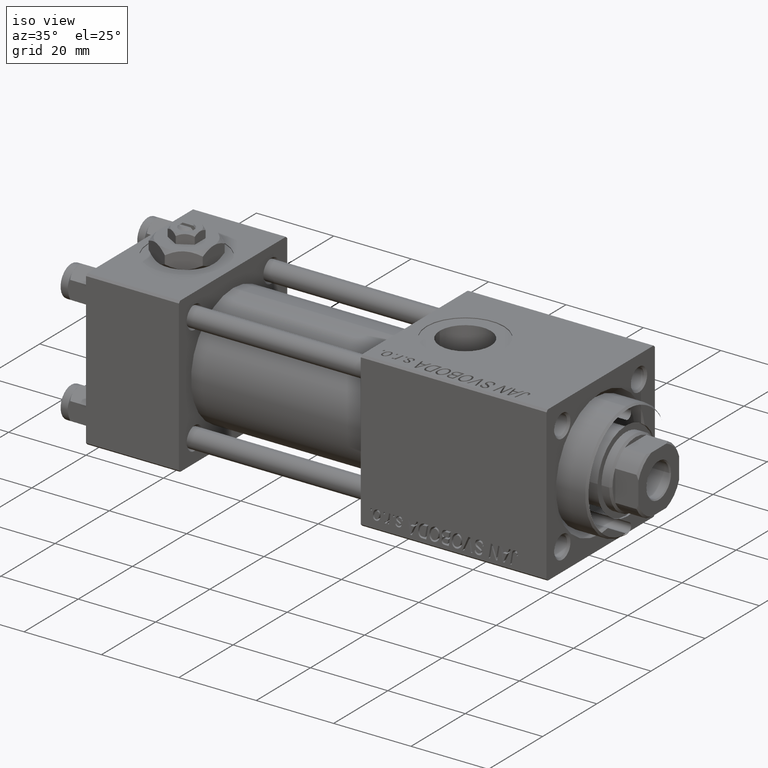
[diagram: clean part render]
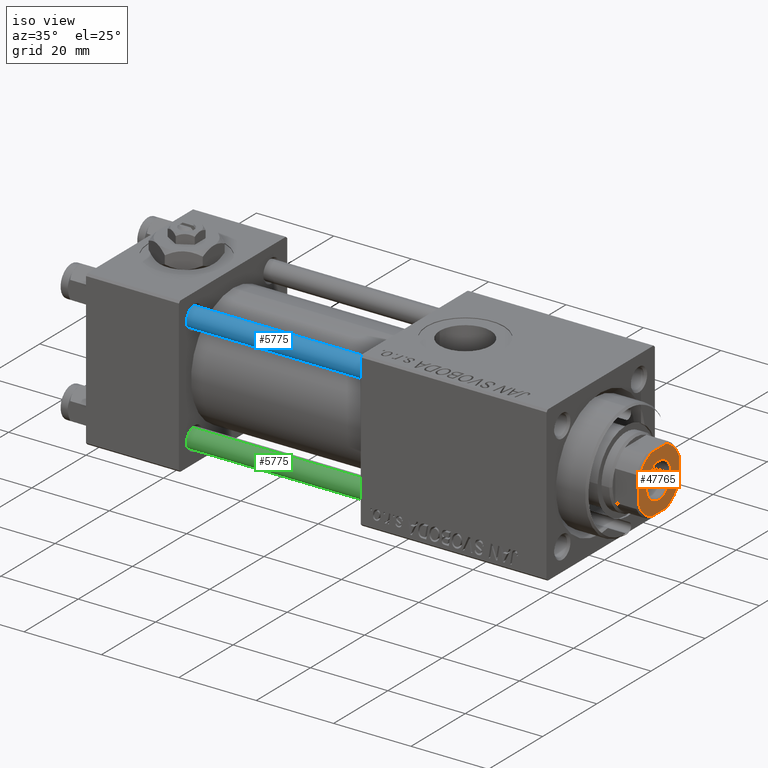
[diagram: same view with three faces highlighted in distinct colors, each labeled with its STEP entity id]
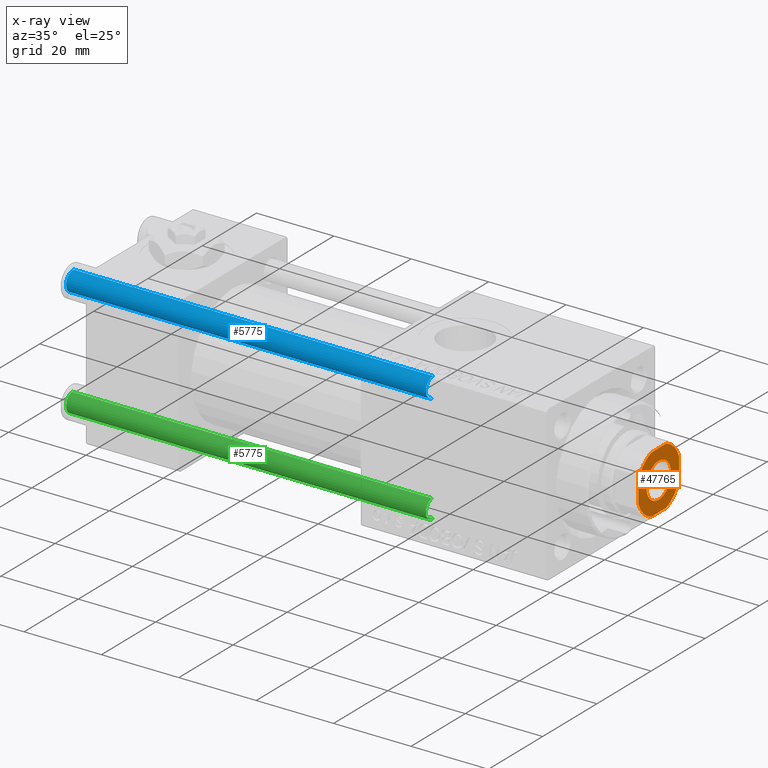
[diagram: x-ray of the same camera — body ghosted, the three highlighted faces saturated]
A machine part, iso view with three faces highlighted in distinct colors.
The next image is the same camera in x-ray (body ghosted, the three faces saturated) — at least one of them is partly hidden behind the body in this view.
Their STEP definitions:

[orange] entity #47765 — the highlighted planar face has unit normal (1, 0, 0).
#189 = ORIENTED_EDGE ( 'NONE', *, *, #3993, .T. ) ;
#807 = AXIS2_PLACEMENT_3D ( 'NONE', #12967, #851, #21106 ) ;
#851 = DIRECTION ( 'NONE',  ( -0.000000000000000000, 0.000000000000000000, 1.000000000000000000 ) ) ;
#1416 = FACE_BOUND ( 'NONE', #30445, .T. ) ;
#1919 = ORIENTED_EDGE ( 'NONE', *, *, #45374, .T. ) ;
#2196 = CIRCLE ( 'NONE', #8919, 4.549999999999998934 ) ;
#2267 = CARTESIAN_POINT ( 'NONE',  ( -2.783882181414881973, -7.500000000000000000, 110.0000000000000000 ) ) ;
#3170 = CARTESIAN_POINT ( 'NONE',  ( 0.000000000000000000, 0.000000000000000000, 110.0000000000000000 ) ) ;
#3993 = EDGE_CURVE ( 'NONE', #24742, #42015, #49441, .T. ) ;
#4441 = CARTESIAN_POINT ( 'NONE',  ( -4.549999999999998934, 5.572142936120455355E-16, 110.0000000000000000 ) ) ;
#4843 = EDGE_LOOP ( 'NONE', ( #44897, #24972, #42975, #189, #1919, #45162, #29626, #17008 ) ) ;
#6600 = ORIENTED_EDGE ( 'NONE', *, *, #32089, .T. ) ;
#7182 = DIRECTION ( 'NONE',  ( -0.000000000000000000, 0.000000000000000000, 1.000000000000000000 ) ) ;
#7186 = EDGE_CURVE ( 'NONE', #30475, #34918, #24383, .T. ) ;
#7489 = CARTESIAN_POINT ( 'NONE',  ( 4.549999999999998934, 0.000000000000000000, 110.0000000000000000 ) ) ;
#8919 = AXIS2_PLACEMENT_3D ( 'NONE', #10682, #30376, #30895 ) ;
#10089 = DIRECTION ( 'NONE',  ( -0.000000000000000000, 0.000000000000000000, 1.000000000000000000 ) ) ;
#10682 = CARTESIAN_POINT ( 'NONE',  ( 0.000000000000000000, 0.000000000000000000, 110.0000000000000000 ) ) ;
#11517 = DIRECTION ( 'NONE',  ( -1.000000000000000000, -1.156482317317871478E-16, -0.000000000000000000 ) ) ;
#12346 = EDGE_CURVE ( 'NONE', #24006, #24742, #15449, .T. ) ;
#12440 = EDGE_CURVE ( 'NONE', #27042, #49179, #32741, .T. ) ;
#12792 = DIRECTION ( 'NONE',  ( -1.156482317317871478E-16, 1.000000000000000000, -0.000000000000000000 ) ) ;
#12967 = CARTESIAN_POINT ( 'NONE',  ( 0.000000000000000000, 0.000000000000000000, 110.0000000000000000 ) ) ;
#12972 = DIRECTION ( 'NONE',  ( -0.000000000000000000, 0.000000000000000000, 1.000000000000000000 ) ) ;
#13511 = PLANE ( 'NONE',  #14733 ) ;
#14733 = AXIS2_PLACEMENT_3D ( 'NONE', #3170, #10089, #26118 ) ;
#15449 = LINE ( 'NONE', #47467, #50570 ) ;
#15992 = LINE ( 'NONE', #19426, #35656 ) ;
#15998 = CARTESIAN_POINT ( 'NONE',  ( 2.783882181414686574, -7.500000000000000000, 110.0000000000000000 ) ) ;
#16508 = EDGE_CURVE ( 'NONE', #28492, #27042, #25437, .T. ) ;
#16905 = CARTESIAN_POINT ( 'NONE',  ( 0.000000000000000000, 0.000000000000000000, 110.0000000000000000 ) ) ;
#17008 = ORIENTED_EDGE ( 'NONE', *, *, #16508, .T. ) ;
#17725 = CIRCLE ( 'NONE', #24431, 7.999999999999887201 ) ;
#17872 = VECTOR ( 'NONE', #12792, 1000.000000000000000 ) ;
#19394 = DIRECTION ( 'NONE',  ( 0.000000000000000000, -0.000000000000000000, -1.000000000000000000 ) ) ;
#19426 = CARTESIAN_POINT ( 'NONE',  ( -7.499999999999998224, -7.500000000000000000, 110.0000000000000000 ) ) ;
#19688 = DIRECTION ( 'NONE',  ( 1.000000000000000000, 0.000000000000000000, 0.000000000000000000 ) ) ;
#20648 = EDGE_CURVE ( 'NONE', #34918, #28492, #15992, .T. ) ;
#21106 = DIRECTION ( 'NONE',  ( 1.000000000000000000, 0.000000000000000000, 0.000000000000000000 ) ) ;
#21658 = FACE_OUTER_BOUND ( 'NONE', #4843, .T. ) ;
#23599 = DIRECTION ( 'NONE',  ( -0.000000000000000000, 0.000000000000000000, 1.000000000000000000 ) ) ;
#24006 = VERTEX_POINT ( 'NONE', #34646 ) ;
#24314 = VERTEX_POINT ( 'NONE', #7489 ) ;
#24341 = EDGE_CURVE ( 'NONE', #32720, #24314, #2196, .T. ) ;
#24383 = CIRCLE ( 'NONE', #31092, 7.999999999999954703 ) ;
#24431 = AXIS2_PLACEMENT_3D ( 'NONE', #48124, #7182, #51560 ) ;
#24742 = VERTEX_POINT ( 'NONE', #44175 ) ;
#24972 = ORIENTED_EDGE ( 'NONE', *, *, #35197, .T. ) ;
#25437 = CIRCLE ( 'NONE', #38032, 7.999999999999887201 ) ;
#26118 = DIRECTION ( 'NONE',  ( 1.000000000000000000, 0.000000000000000000, 0.000000000000000000 ) ) ;
#26862 = CARTESIAN_POINT ( 'NONE',  ( -7.500000000000000000, 7.499999999999998224, 110.0000000000000000 ) ) ;
#27042 = VERTEX_POINT ( 'NONE', #36748 ) ;
#27381 = LINE ( 'NONE', #26862, #46496 ) ;
#27533 = DIRECTION ( 'NONE',  ( 1.000000000000000000, 0.000000000000000000, 0.000000000000000000 ) ) ;
#27802 = CARTESIAN_POINT ( 'NONE',  ( 0.000000000000000000, 0.000000000000000000, 110.0000000000000000 ) ) ;
#28492 = VERTEX_POINT ( 'NONE', #15998 ) ;
#28991 = DIRECTION ( 'NONE',  ( 1.000000000000000000, 0.000000000000000000, 0.000000000000000000 ) ) ;
#29626 = ORIENTED_EDGE ( 'NONE', *, *, #20648, .T. ) ;
#30376 = DIRECTION ( 'NONE',  ( 0.000000000000000000, -0.000000000000000000, -1.000000000000000000 ) ) ;
#30436 = CARTESIAN_POINT ( 'NONE',  ( -7.499999999999999112, 2.783882181414884638, 110.0000000000000000 ) ) ;
#30445 = EDGE_LOOP ( 'NONE', ( #6600, #51091 ) ) ;
#30475 = VERTEX_POINT ( 'NONE', #47386 ) ;
#30895 = DIRECTION ( 'NONE',  ( 1.000000000000000000, 0.000000000000000000, 0.000000000000000000 ) ) ;
#31092 = AXIS2_PLACEMENT_3D ( 'NONE', #27802, #23599, #43789 ) ;
#32089 = EDGE_CURVE ( 'NONE', #24314, #32720, #46117, .T. ) ;
#32720 = VERTEX_POINT ( 'NONE', #4441 ) ;
#32741 = LINE ( 'NONE', #48739, #17872 ) ;
#34646 = CARTESIAN_POINT ( 'NONE',  ( 2.783882181414688350, 7.499999999999999112, 110.0000000000000000 ) ) ;
#34918 = VERTEX_POINT ( 'NONE', #2267 ) ;
#35197 = EDGE_CURVE ( 'NONE', #49179, #24006, #17725, .T. ) ;
#35656 = VECTOR ( 'NONE', #19688, 1000.000000000000000 ) ;
#36517 = CARTESIAN_POINT ( 'NONE',  ( 7.500000000000000888, 2.783882181414685686, 110.0000000000000000 ) ) ;
#36748 = CARTESIAN_POINT ( 'NONE',  ( 7.500000000000000888, -2.783882181414683465, 110.0000000000000000 ) ) ;
#38032 = AXIS2_PLACEMENT_3D ( 'NONE', #16905, #12972, #28991 ) ;
#42015 = VERTEX_POINT ( 'NONE', #30436 ) ;
#42847 = DIRECTION ( 'NONE',  ( 1.156482317317871725E-16, -1.000000000000000000, 0.000000000000000000 ) ) ;
#42975 = ORIENTED_EDGE ( 'NONE', *, *, #12346, .T. ) ;
#43789 = DIRECTION ( 'NONE',  ( 1.000000000000000000, 0.000000000000000000, 0.000000000000000000 ) ) ;
#44175 = CARTESIAN_POINT ( 'NONE',  ( -2.783882181414885082, 7.499999999999999112, 110.0000000000000000 ) ) ;
#44897 = ORIENTED_EDGE ( 'NONE', *, *, #12440, .T. ) ;
#45162 = ORIENTED_EDGE ( 'NONE', *, *, #7186, .T. ) ;
#45374 = EDGE_CURVE ( 'NONE', #42015, #30475, #27381, .T. ) ;
#46117 = CIRCLE ( 'NONE', #51971, 4.549999999999998934 ) ;
#46496 = VECTOR ( 'NONE', #42847, 1000.000000000000000 ) ;
#47386 = CARTESIAN_POINT ( 'NONE',  ( -7.499999999999997335, -2.783882181414887302, 110.0000000000000000 ) ) ;
#47467 = CARTESIAN_POINT ( 'NONE',  ( -7.500000000000000000, 7.499999999999998224, 110.0000000000000000 ) ) ;
#47765 = ADVANCED_FACE ( 'NONE', ( #1416, #21658 ), #13511, .T. ) ;
#48124 = CARTESIAN_POINT ( 'NONE',  ( 0.000000000000000000, 0.000000000000000000, 110.0000000000000000 ) ) ;
#48739 = CARTESIAN_POINT ( 'NONE',  ( 7.500000000000000000, 7.500000000000000000, 110.0000000000000000 ) ) ;
#49179 = VERTEX_POINT ( 'NONE', #36517 ) ;
#49441 = CIRCLE ( 'NONE', #807, 7.999999999999954703 ) ;
#50570 = VECTOR ( 'NONE', #11517, 1000.000000000000000 ) ;
#51091 = ORIENTED_EDGE ( 'NONE', *, *, #24341, .T. ) ;
#51146 = CARTESIAN_POINT ( 'NONE',  ( 0.000000000000000000, 0.000000000000000000, 110.0000000000000000 ) ) ;
#51560 = DIRECTION ( 'NONE',  ( 1.000000000000000000, 0.000000000000000000, 0.000000000000000000 ) ) ;
#51971 = AXIS2_PLACEMENT_3D ( 'NONE', #51146, #19394, #27533 ) ;

[blue] entity #5775 — the highlighted cylindrical surface (edge-blend (fillet) strip) has radius 2.5 mm, axis along (1, 0, -0).
#1673 = EDGE_LOOP ( 'NONE', ( #12186, #40180, #37942, #16439 ) ) ;
#1770 = CARTESIAN_POINT ( 'NONE',  ( 2.500000000000000000, 3.061616997868383141E-16, 94.00000000000000000 ) ) ;
#3096 = VECTOR ( 'NONE', #26229, 1000.000000000000000 ) ;
#3493 = EDGE_CURVE ( 'NONE', #49353, #16637, #6638, .T. ) ;
#5775 = ADVANCED_FACE ( 'NONE', ( #46817 ), #30048, .T. ) ;
#6330 = AXIS2_PLACEMENT_3D ( 'NONE', #11175, #47892, #35582 ) ;
#6638 = CIRCLE ( 'NONE', #13365, 2.500000000000000000 ) ;
#7893 = CARTESIAN_POINT ( 'NONE',  ( 2.500000000000000000, 3.061616997868383141E-16, 93.50000000000001421 ) ) ;
#9014 = CARTESIAN_POINT ( 'NONE',  ( -2.500000000000000000, 0.000000000000000000, 94.00000000000000000 ) ) ;
#10862 = CARTESIAN_POINT ( 'NONE',  ( 0.000000000000000000, 0.000000000000000000, 94.00000000000000000 ) ) ;
#11175 = CARTESIAN_POINT ( 'NONE',  ( 0.000000000000000000, 0.000000000000000000, 93.50000000000001421 ) ) ;
#12186 = ORIENTED_EDGE ( 'NONE', *, *, #22295, .T. ) ;
#12246 = CARTESIAN_POINT ( 'NONE',  ( 2.500000000000000000, 3.061616997868383141E-16, 0.5000000000000004441 ) ) ;
#13365 = AXIS2_PLACEMENT_3D ( 'NONE', #34872, #15420, #27509 ) ;
#14530 = VECTOR ( 'NONE', #17166, 1000.000000000000000 ) ;
#15420 = DIRECTION ( 'NONE',  ( -0.000000000000000000, -0.000000000000000000, 1.000000000000000000 ) ) ;
#15716 = EDGE_CURVE ( 'NONE', #47609, #16637, #38098, .T. ) ;
#16439 = ORIENTED_EDGE ( 'NONE', *, *, #15716, .F. ) ;
#16620 = VERTEX_POINT ( 'NONE', #7893 ) ;
#16637 = VERTEX_POINT ( 'NONE', #26445 ) ;
#17166 = DIRECTION ( 'NONE',  ( -0.000000000000000000, -0.000000000000000000, -1.000000000000000000 ) ) ;
#22295 = EDGE_CURVE ( 'NONE', #47609, #16620, #23120, .T. ) ;
#23120 = CIRCLE ( 'NONE', #6330, 2.500000000000000000 ) ;
#25179 = AXIS2_PLACEMENT_3D ( 'NONE', #10862, #26374, #42621 ) ;
#26229 = DIRECTION ( 'NONE',  ( -0.000000000000000000, -0.000000000000000000, -1.000000000000000000 ) ) ;
#26374 = DIRECTION ( 'NONE',  ( -0.000000000000000000, -0.000000000000000000, -1.000000000000000000 ) ) ;
#26445 = CARTESIAN_POINT ( 'NONE',  ( -2.500000000000000000, 0.000000000000000000, 0.5000000000000004441 ) ) ;
#27509 = DIRECTION ( 'NONE',  ( 1.000000000000000000, 0.000000000000000000, 0.000000000000000000 ) ) ;
#29269 = EDGE_CURVE ( 'NONE', #16620, #49353, #30162, .T. ) ;
#30048 = CYLINDRICAL_SURFACE ( 'NONE', #25179, 2.500000000000000000 ) ;
#30162 = LINE ( 'NONE', #1770, #3096 ) ;
#34062 = CARTESIAN_POINT ( 'NONE',  ( -2.500000000000000000, 0.000000000000000000, 93.50000000000001421 ) ) ;
#34872 = CARTESIAN_POINT ( 'NONE',  ( 0.000000000000000000, 0.000000000000000000, 0.5000000000000004441 ) ) ;
#35582 = DIRECTION ( 'NONE',  ( 1.000000000000000000, 0.000000000000000000, 0.000000000000000000 ) ) ;
#37942 = ORIENTED_EDGE ( 'NONE', *, *, #3493, .T. ) ;
#38098 = LINE ( 'NONE', #9014, #14530 ) ;
#40180 = ORIENTED_EDGE ( 'NONE', *, *, #29269, .T. ) ;
#42621 = DIRECTION ( 'NONE',  ( -1.000000000000000000, 0.000000000000000000, 0.000000000000000000 ) ) ;
#46817 = FACE_OUTER_BOUND ( 'NONE', #1673, .T. ) ;
#47609 = VERTEX_POINT ( 'NONE', #34062 ) ;
#47892 = DIRECTION ( 'NONE',  ( 0.000000000000000000, 0.000000000000000000, -1.000000000000000000 ) ) ;
#49353 = VERTEX_POINT ( 'NONE', #12246 ) ;

[green] entity #5775 — the highlighted cylindrical surface (edge-blend (fillet) strip) has radius 2.5 mm, axis along (-1, -0, -0).
#1673 = EDGE_LOOP ( 'NONE', ( #12186, #40180, #37942, #16439 ) ) ;
#1770 = CARTESIAN_POINT ( 'NONE',  ( 2.500000000000000000, 3.061616997868383141E-16, 94.00000000000000000 ) ) ;
#3096 = VECTOR ( 'NONE', #26229, 1000.000000000000000 ) ;
#3493 = EDGE_CURVE ( 'NONE', #49353, #16637, #6638, .T. ) ;
#5775 = ADVANCED_FACE ( 'NONE', ( #46817 ), #30048, .T. ) ;
#6330 = AXIS2_PLACEMENT_3D ( 'NONE', #11175, #47892, #35582 ) ;
#6638 = CIRCLE ( 'NONE', #13365, 2.500000000000000000 ) ;
#7893 = CARTESIAN_POINT ( 'NONE',  ( 2.500000000000000000, 3.061616997868383141E-16, 93.50000000000001421 ) ) ;
#9014 = CARTESIAN_POINT ( 'NONE',  ( -2.500000000000000000, 0.000000000000000000, 94.00000000000000000 ) ) ;
#10862 = CARTESIAN_POINT ( 'NONE',  ( 0.000000000000000000, 0.000000000000000000, 94.00000000000000000 ) ) ;
#11175 = CARTESIAN_POINT ( 'NONE',  ( 0.000000000000000000, 0.000000000000000000, 93.50000000000001421 ) ) ;
#12186 = ORIENTED_EDGE ( 'NONE', *, *, #22295, .T. ) ;
#12246 = CARTESIAN_POINT ( 'NONE',  ( 2.500000000000000000, 3.061616997868383141E-16, 0.5000000000000004441 ) ) ;
#13365 = AXIS2_PLACEMENT_3D ( 'NONE', #34872, #15420, #27509 ) ;
#14530 = VECTOR ( 'NONE', #17166, 1000.000000000000000 ) ;
#15420 = DIRECTION ( 'NONE',  ( -0.000000000000000000, -0.000000000000000000, 1.000000000000000000 ) ) ;
#15716 = EDGE_CURVE ( 'NONE', #47609, #16637, #38098, .T. ) ;
#16439 = ORIENTED_EDGE ( 'NONE', *, *, #15716, .F. ) ;
#16620 = VERTEX_POINT ( 'NONE', #7893 ) ;
#16637 = VERTEX_POINT ( 'NONE', #26445 ) ;
#17166 = DIRECTION ( 'NONE',  ( -0.000000000000000000, -0.000000000000000000, -1.000000000000000000 ) ) ;
#22295 = EDGE_CURVE ( 'NONE', #47609, #16620, #23120, .T. ) ;
#23120 = CIRCLE ( 'NONE', #6330, 2.500000000000000000 ) ;
#25179 = AXIS2_PLACEMENT_3D ( 'NONE', #10862, #26374, #42621 ) ;
#26229 = DIRECTION ( 'NONE',  ( -0.000000000000000000, -0.000000000000000000, -1.000000000000000000 ) ) ;
#26374 = DIRECTION ( 'NONE',  ( -0.000000000000000000, -0.000000000000000000, -1.000000000000000000 ) ) ;
#26445 = CARTESIAN_POINT ( 'NONE',  ( -2.500000000000000000, 0.000000000000000000, 0.5000000000000004441 ) ) ;
#27509 = DIRECTION ( 'NONE',  ( 1.000000000000000000, 0.000000000000000000, 0.000000000000000000 ) ) ;
#29269 = EDGE_CURVE ( 'NONE', #16620, #49353, #30162, .T. ) ;
#30048 = CYLINDRICAL_SURFACE ( 'NONE', #25179, 2.500000000000000000 ) ;
#30162 = LINE ( 'NONE', #1770, #3096 ) ;
#34062 = CARTESIAN_POINT ( 'NONE',  ( -2.500000000000000000, 0.000000000000000000, 93.50000000000001421 ) ) ;
#34872 = CARTESIAN_POINT ( 'NONE',  ( 0.000000000000000000, 0.000000000000000000, 0.5000000000000004441 ) ) ;
#35582 = DIRECTION ( 'NONE',  ( 1.000000000000000000, 0.000000000000000000, 0.000000000000000000 ) ) ;
#37942 = ORIENTED_EDGE ( 'NONE', *, *, #3493, .T. ) ;
#38098 = LINE ( 'NONE', #9014, #14530 ) ;
#40180 = ORIENTED_EDGE ( 'NONE', *, *, #29269, .T. ) ;
#42621 = DIRECTION ( 'NONE',  ( -1.000000000000000000, 0.000000000000000000, 0.000000000000000000 ) ) ;
#46817 = FACE_OUTER_BOUND ( 'NONE', #1673, .T. ) ;
#47609 = VERTEX_POINT ( 'NONE', #34062 ) ;
#47892 = DIRECTION ( 'NONE',  ( 0.000000000000000000, 0.000000000000000000, -1.000000000000000000 ) ) ;
#49353 = VERTEX_POINT ( 'NONE', #12246 ) ;